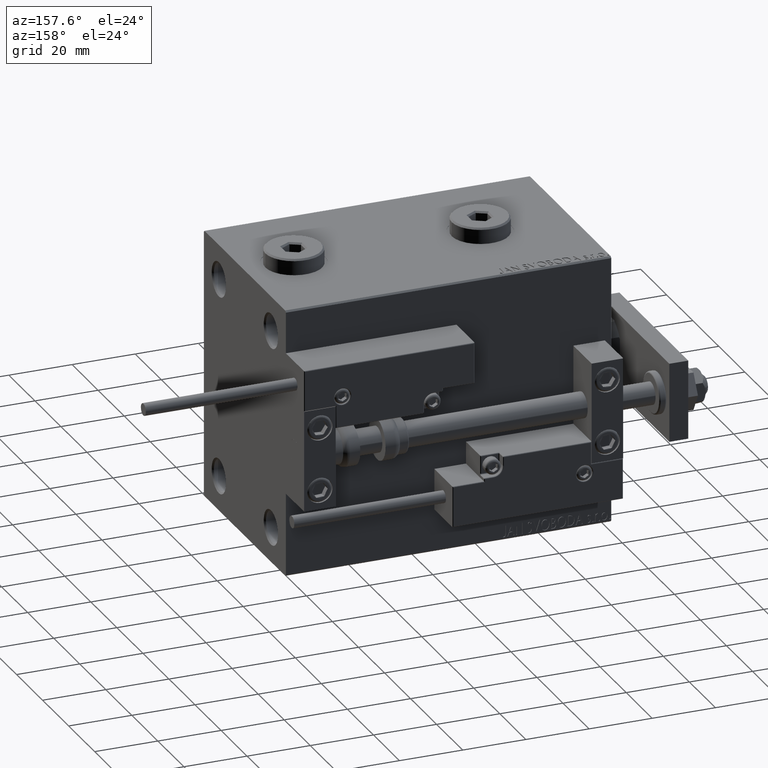
[diagram: clean part render]
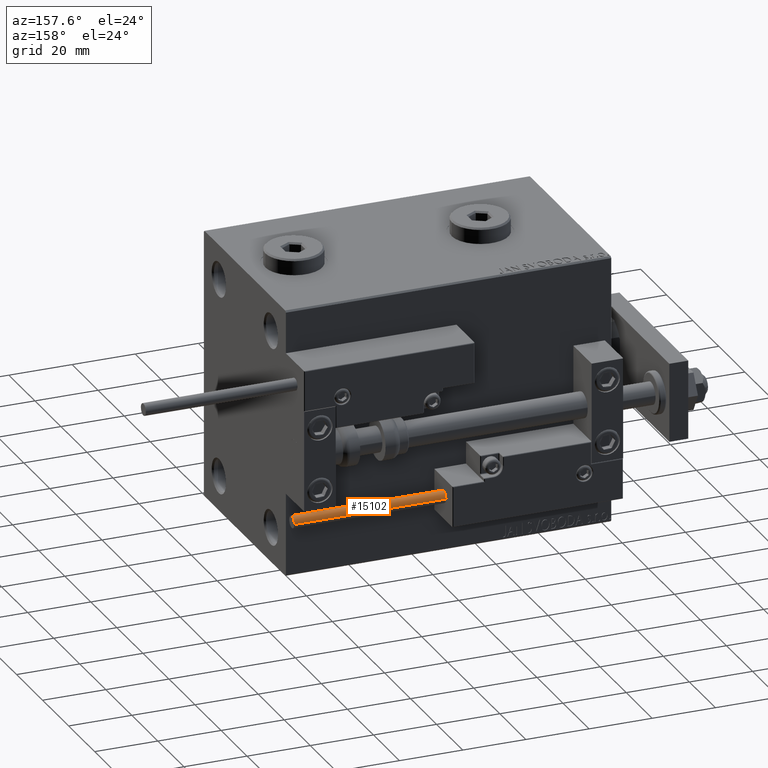
[diagram: same view with one face highlighted and labeled with its STEP entity id]
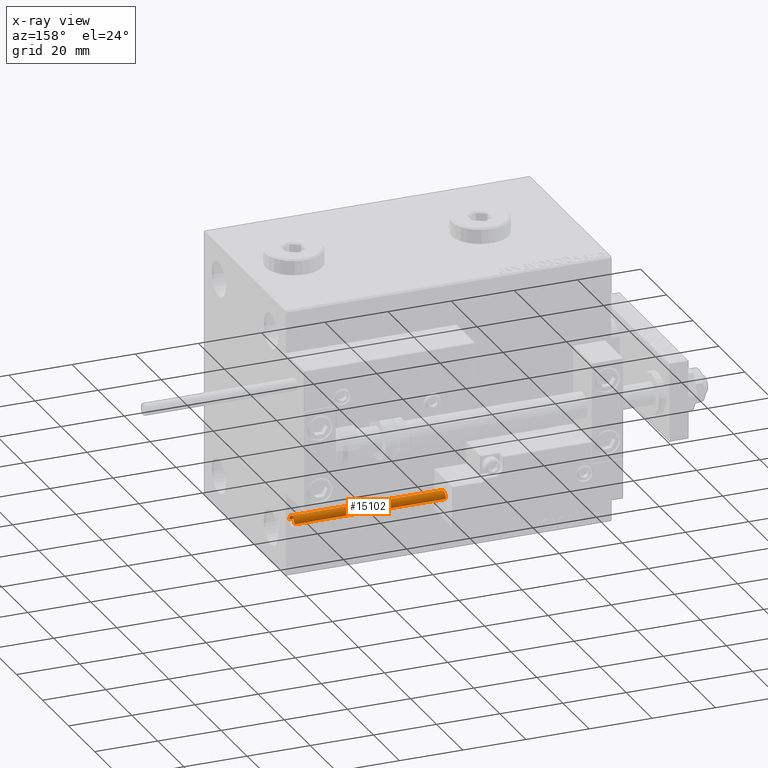
[diagram: x-ray of the same camera — body ghosted, the highlighted face saturated]
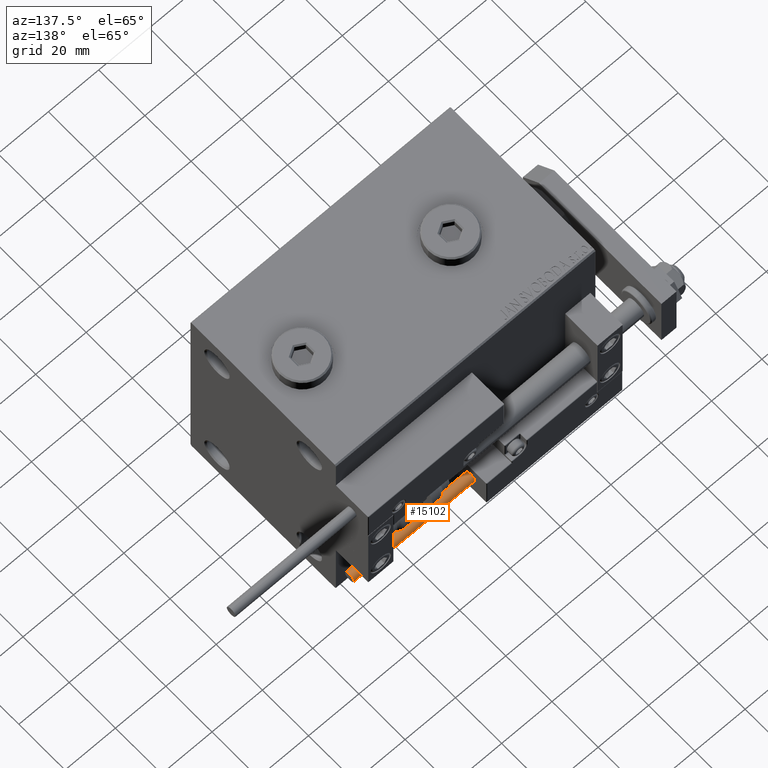
[diagram: same view with one face highlighted and labeled with its STEP entity id]
A machine part, auxiliary view. The second image highlights one B-rep face of the part: STEP entity #15102.
The next image is the same camera in x-ray: the body ghosted, the highlighted face saturated — about 0% of this face is hidden behind the body in this view.
A second angle (auxiliary view) of the same face is appended — the face is thin or edge-on in the first view.
In plain terms, the highlighted cylindrical surface (edge-blend (fillet) strip) has radius 1.9 mm, axis along (-1, 0, 0).
Its self-contained STEP definition (entity closure, byte-faithful):
#32 = ORIENTED_EDGE ( 'NONE', *, *, #10376, .F. ) ;
#482 = DIRECTION ( 'NONE',  ( 1.000000000000000000, 0.000000000000000000, 0.000000000000000000 ) ) ;
#1290 = VECTOR ( 'NONE', #27601, 1000.000000000000000 ) ;
#2026 = AXIS2_PLACEMENT_3D ( 'NONE', #36532, #12356, #44274 ) ;
#2965 = CARTESIAN_POINT ( 'NONE',  ( -1.899999999999999467, 0.000000000000000000, 0.000000000000000000 ) ) ;
#3309 = EDGE_CURVE ( 'NONE', #45047, #3544, #24915, .T. ) ;
#3544 = VERTEX_POINT ( 'NONE', #28497 ) ;
#5155 = DIRECTION ( 'NONE',  ( -0.000000000000000000, -0.000000000000000000, -1.000000000000000000 ) ) ;
#5808 = EDGE_CURVE ( 'NONE', #45047, #7470, #15118, .T. ) ;
#6351 = ORIENTED_EDGE ( 'NONE', *, *, #35622, .T. ) ;
#7470 = VERTEX_POINT ( 'NONE', #46035 ) ;
#8840 = ORIENTED_EDGE ( 'NONE', *, *, #3309, .F. ) ;
#10376 = EDGE_CURVE ( 'NONE', #3544, #25398, #13018, .T. ) ;
#11137 = CARTESIAN_POINT ( 'NONE',  ( 1.899999999999999467, 2.326828918379970872E-16, 48.00000000000000000 ) ) ;
#12356 = DIRECTION ( 'NONE',  ( 0.000000000000000000, 0.000000000000000000, 1.000000000000000000 ) ) ;
#13018 = LINE ( 'NONE', #41715, #44731 ) ;
#13104 = CYLINDRICAL_SURFACE ( 'NONE', #20164, 1.899999999999999467 ) ;
#15028 = AXIS2_PLACEMENT_3D ( 'NONE', #36859, #49388, #482 ) ;
#15102 = ADVANCED_FACE ( 'NONE', ( #25336 ), #13104, .T. ) ;
#15118 = LINE ( 'NONE', #11137, #1290 ) ;
#20164 = AXIS2_PLACEMENT_3D ( 'NONE', #41545, #5155, #37532 ) ;
#24915 = CIRCLE ( 'NONE', #2026, 1.899999999999999467 ) ;
#25336 = FACE_OUTER_BOUND ( 'NONE', #45450, .T. ) ;
#25398 = VERTEX_POINT ( 'NONE', #2965 ) ;
#27601 = DIRECTION ( 'NONE',  ( -0.000000000000000000, -0.000000000000000000, -1.000000000000000000 ) ) ;
#28497 = CARTESIAN_POINT ( 'NONE',  ( -1.899999999999999467, 0.000000000000000000, 48.00000000000000000 ) ) ;
#30323 = CIRCLE ( 'NONE', #15028, 1.899999999999999467 ) ;
#35622 = EDGE_CURVE ( 'NONE', #7470, #25398, #30323, .T. ) ;
#36532 = CARTESIAN_POINT ( 'NONE',  ( 0.000000000000000000, 0.000000000000000000, 48.00000000000000000 ) ) ;
#36626 = CARTESIAN_POINT ( 'NONE',  ( 1.899999999999999467, 2.326828918379970872E-16, 48.00000000000000000 ) ) ;
#36859 = CARTESIAN_POINT ( 'NONE',  ( 0.000000000000000000, 0.000000000000000000, 0.000000000000000000 ) ) ;
#37532 = DIRECTION ( 'NONE',  ( -1.000000000000000000, 0.000000000000000000, 0.000000000000000000 ) ) ;
#37718 = DIRECTION ( 'NONE',  ( -0.000000000000000000, -0.000000000000000000, -1.000000000000000000 ) ) ;
#41545 = CARTESIAN_POINT ( 'NONE',  ( 0.000000000000000000, 0.000000000000000000, 48.00000000000000000 ) ) ;
#41715 = CARTESIAN_POINT ( 'NONE',  ( -1.899999999999999467, 0.000000000000000000, 48.00000000000000000 ) ) ;
#42842 = ORIENTED_EDGE ( 'NONE', *, *, #5808, .T. ) ;
#44274 = DIRECTION ( 'NONE',  ( 1.000000000000000000, 0.000000000000000000, 0.000000000000000000 ) ) ;
#44731 = VECTOR ( 'NONE', #37718, 1000.000000000000000 ) ;
#45047 = VERTEX_POINT ( 'NONE', #36626 ) ;
#45450 = EDGE_LOOP ( 'NONE', ( #8840, #42842, #6351, #32 ) ) ;
#46035 = CARTESIAN_POINT ( 'NONE',  ( 1.899999999999999467, 2.326828918379970872E-16, 0.000000000000000000 ) ) ;
#49388 = DIRECTION ( 'NONE',  ( 0.000000000000000000, 0.000000000000000000, 1.000000000000000000 ) ) ;